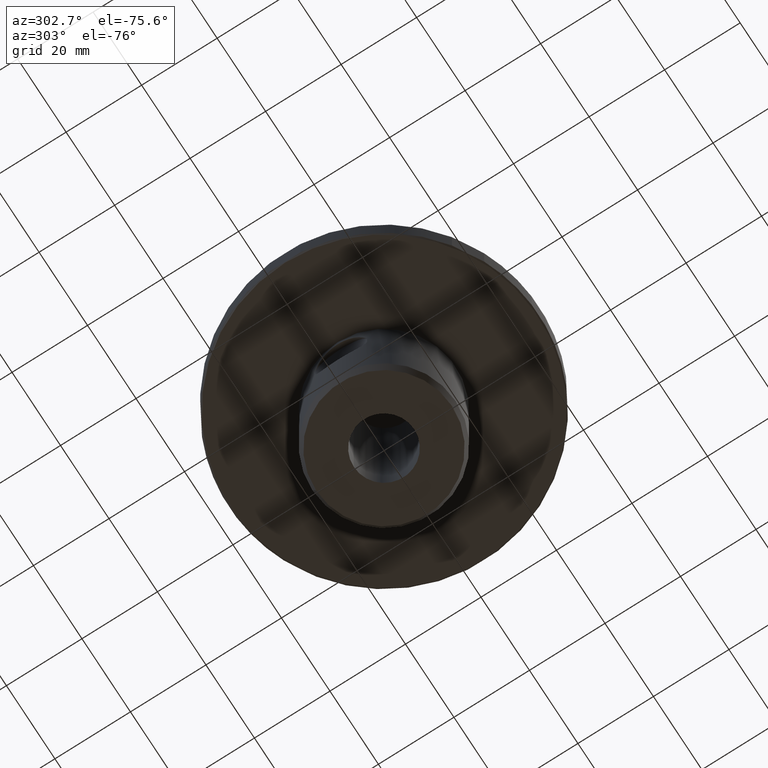
[diagram: clean part render]
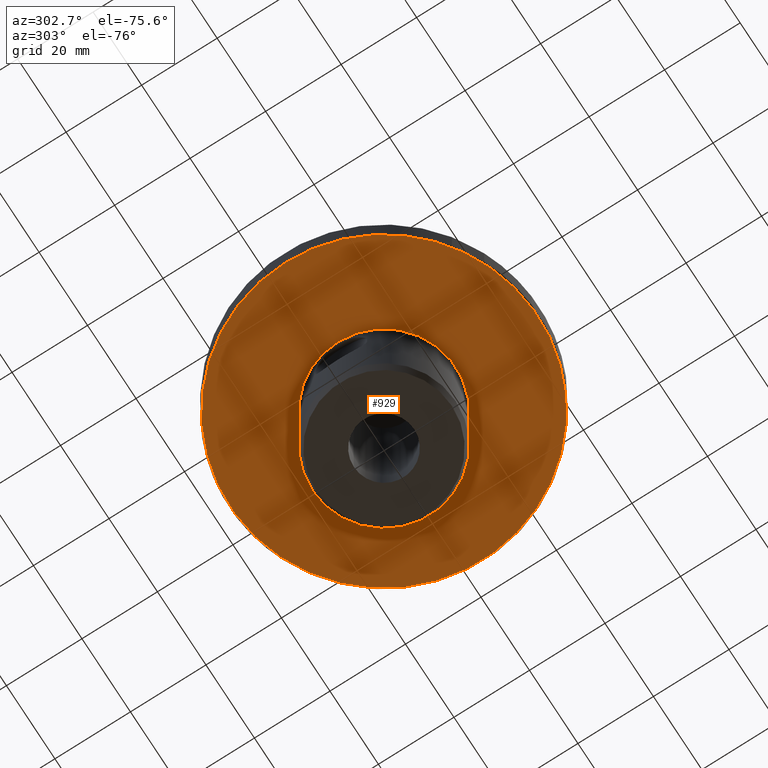
[diagram: same view with one face highlighted and labeled with its STEP entity id]
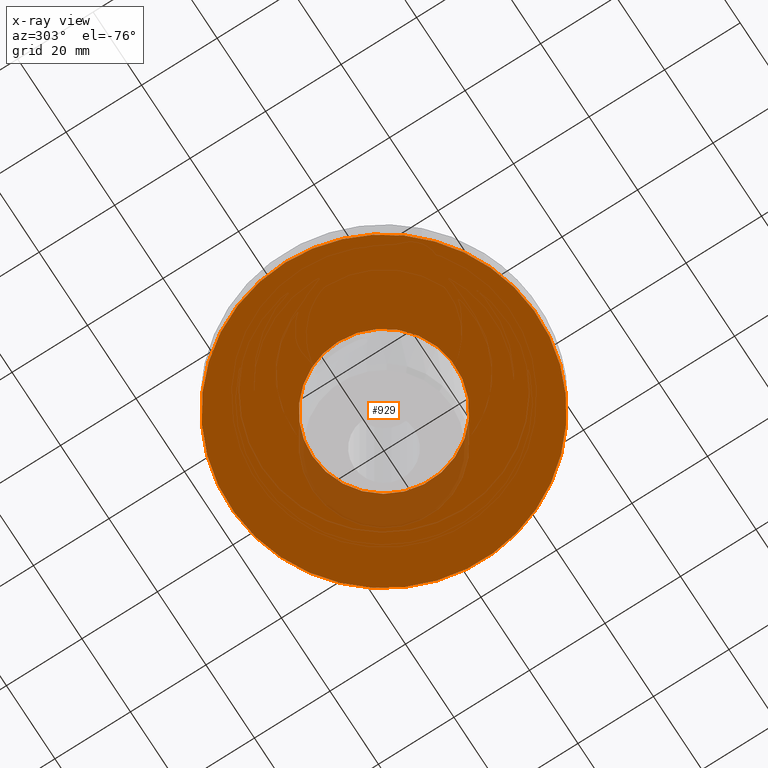
[diagram: x-ray of the same camera — body ghosted, the highlighted face saturated]
A machine part, auxiliary view. The second image highlights one B-rep face of the part: STEP entity #929.
The next image is the same camera in x-ray: the body ghosted, the highlighted face saturated — about 7% of this face is hidden behind the body in this view.
In plain terms, the highlighted planar face has unit normal (0, -0, -1).
Its self-contained STEP definition (entity closure, byte-faithful):
#40=PLANE('',#1014);
#59=CIRCLE('',#1007,19.);
#62=CIRCLE('',#1015,40.7);
#187=ORIENTED_EDGE('',*,*,#440,.F.);
#188=ORIENTED_EDGE('',*,*,#447,.T.);
#440=EDGE_CURVE('',#571,#571,#59,.T.);
#447=EDGE_CURVE('',#578,#578,#62,.T.);
#571=VERTEX_POINT('',#1435);
#578=VERTEX_POINT('',#1467);
#714=EDGE_LOOP('',(#187));
#715=EDGE_LOOP('',(#188));
#809=FACE_BOUND('',#714,.T.);
#810=FACE_BOUND('',#715,.T.);
#929=ADVANCED_FACE('',(#809,#810),#40,.T.);
#1007=AXIS2_PLACEMENT_3D('',#1434,#1136,#1137);
#1014=AXIS2_PLACEMENT_3D('',#1465,#1150,#1151);
#1015=AXIS2_PLACEMENT_3D('',#1466,#1152,#1153);
#1136=DIRECTION('',(1.22461692971323E-16,-7.49836836562635E-33,-1.));
#1137=DIRECTION('',(-1.,0.,-1.22461692971323E-16));
#1150=DIRECTION('',(1.22461692971323E-16,-7.49836836562635E-33,-1.));
#1151=DIRECTION('',(-1.,6.12303176911189E-17,-1.22461692971323E-16));
#1152=DIRECTION('',(-7.30126435159279E-33,-9.52839055771651E-18,-1.));
#1153=DIRECTION('',(-1.,-8.32667268468868E-17,2.89465139560709E-33));
#1434=CARTESIAN_POINT('',(0.,0.,-8.99999999999999));
#1435=CARTESIAN_POINT('',(-19.,0.,-9.));
#1465=CARTESIAN_POINT('',(-30.5,1.86752468957913E-15,-9.));
#1466=CARTESIAN_POINT('',(7.88665112559661E-15,-1.67699673815811E-16,-9.00000000000001));
#1467=CARTESIAN_POINT('',(-40.7,-3.5566554564841E-15,-9.00000000000001));